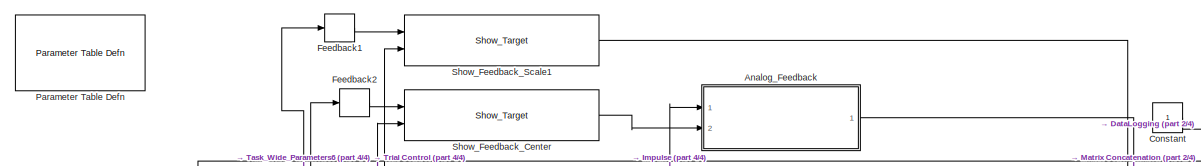
[diagram: root canvas - part 1/4, top center region]
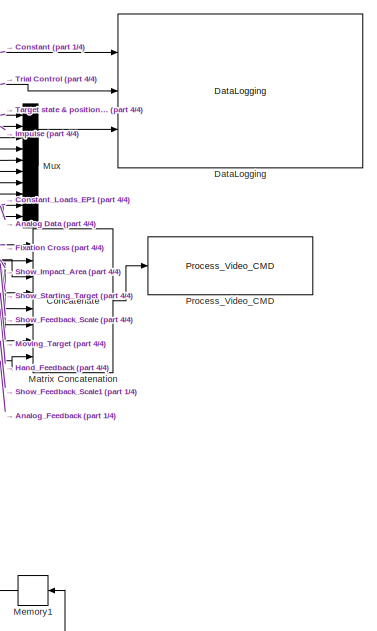
[diagram: root canvas - part 2/4, middle right region]
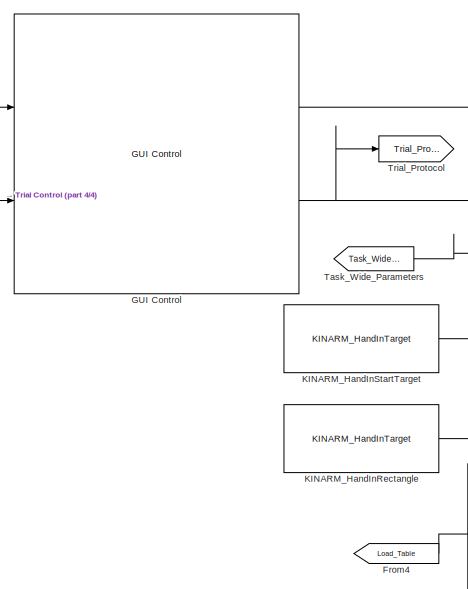
[diagram: root canvas - part 3/4, middle left region]
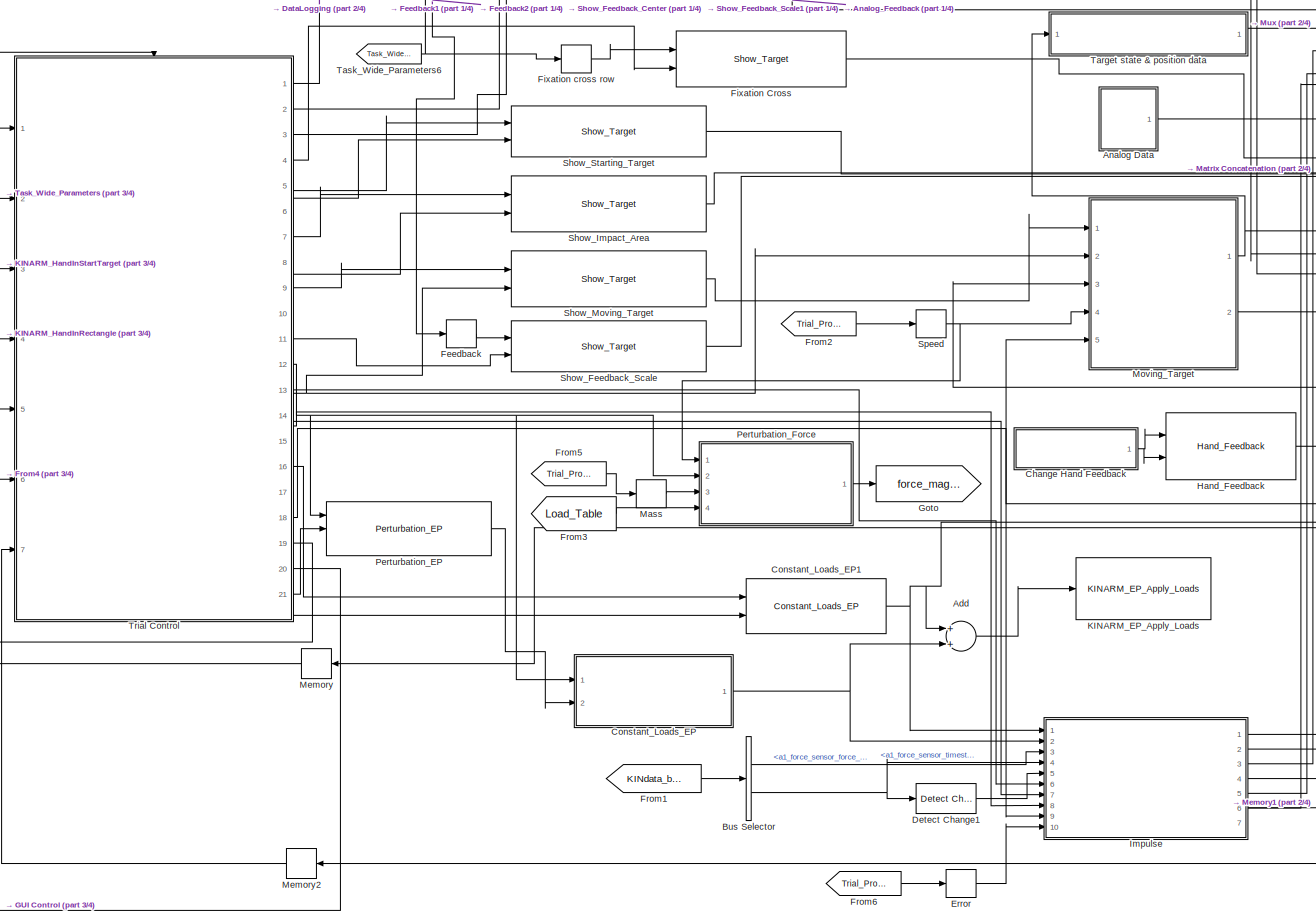
[diagram: root canvas - part 4/4, center side, full height]
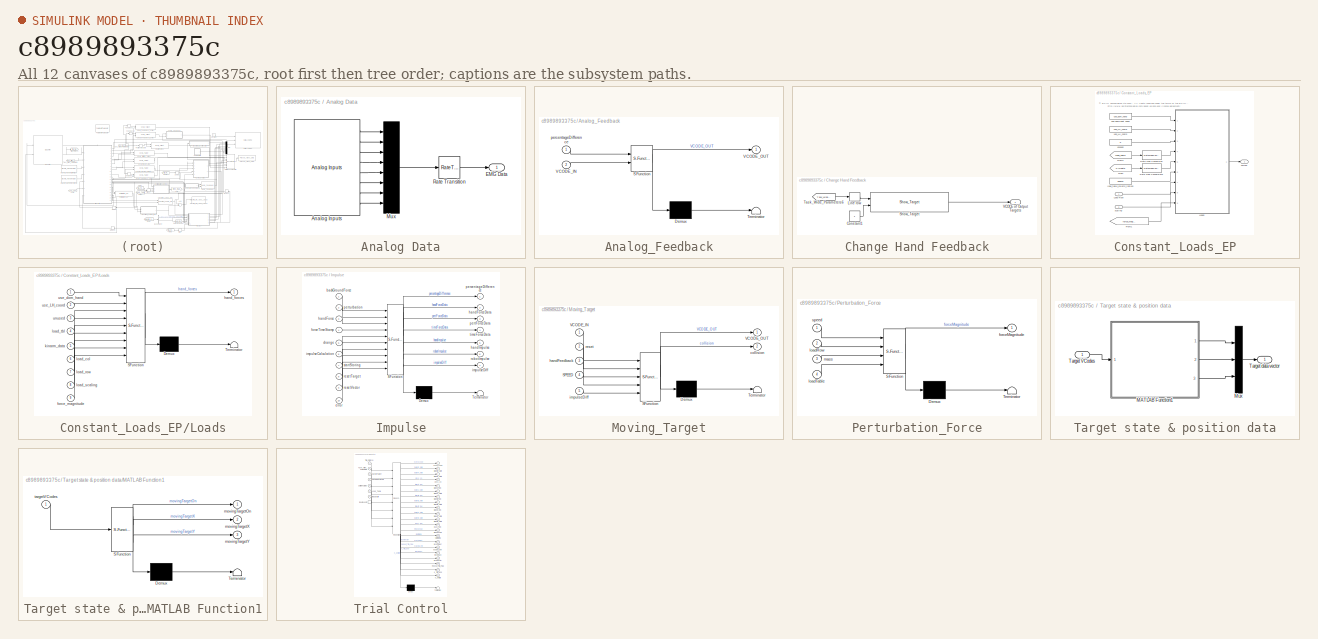
[diagram: thumbnail index - all 12 canvases of the model, root first then tree order]
MODEL slx_c8989893375c
KIND model
CONFIG AbsTol = auto
CONFIG FixedStep = BKIN_STEP_TIME
CONFIG MaxStep = auto
CONFIG MinStep = auto
CONFIG RelTol = 1e-3
CONFIG SampleTimeConstraint = Unconstrained
CONFIG Solver = ode4
CONFIG SolverMode = MultiTasking
CONFIG SolverName = ode4
CONFIG StartFcn =  warndlg('Dexterit-E models cannot run under simulation. Please compile your model and run it from within Dexterit-E.');set_param(bdroot,'SimulationCommand','stop')
CONFIG StartTime = 0.0
CONFIG StopTime = inf
WORKSPACE source: MAT-file member
WORKSPACE col_x = 1
BLOCK [Sum] Add
  InputSameDT = off
  OutDataTypeStr = Inherit: Inherit via internal rule
  Ports = [2, 1]
  SaturateOnIntegerOverflow = off
BLOCK [SubSystem] Analog Data
  Ports = [0, 1]
  RequestExecContextInheritance = off
BLOCK [Reference] Analog Data/Analog Inputs  REF=KINARM_IO/Analog Inputs
  Ports = [0, 8]
  SourceBlock = KINARM_IO/Analog Inputs
  SourceType = Analog Inputs
  channel = [1:8]
  coupling = [0]
  oscantime6071e = 0
  range = [5]
  sampletime = 0.001
  scantime6071e = 1.28e-5
  scantime6229 = 5e-6
  slot = -1
BLOCK [Outport] Analog Data/EMG Data
  IconDisplay = Port number
BLOCK [Mux] Analog Data/Mux
  DisplayOption = bar
  Inputs = 8
  Ports = [8, 1]
BLOCK [RateTransition] Analog Data/Rate Transition
BLOCK [SubSystem] Analog_Feedback
  ErrorFcn = Stateflow.Translate.translate
  PermitHierarchicalResolution = ExplicitOnly
  Ports = [2, 1]
  RequestExecContextInheritance = off
  SFBlockType = MATLAB Function
  TreatAsAtomicUnit = on
BLOCK [Demux] Analog_Feedback/ Demux 
  Outputs = 1
  Ports = [1, 1]
BLOCK [S-Function] Analog_Feedback/ SFunction 
  EnableBusSupport = on
  FunctionName = sf_sfun
  PortCounts = [2 2]
  Ports = [2, 2]
  Tag = Stateflow S-Function EIFANG_V1_09_09_21_RAMP_ERROR_FIXED 3
BLOCK [Terminator] Analog_Feedback/ Terminator 
BLOCK [Inport] Analog_Feedback/VCODE_IN
  IconDisplay = Port number
  Port = 2
BLOCK [Outport] Analog_Feedback/VCODE_OUT
  IconDisplay = Port number
BLOCK [Inport] Analog_Feedback/percentageDifference
  IconDisplay = Port number
BLOCK [BusSelector] Bus Selector
  OutputSignals = Robot1.a1_force_sensor_force_xyz,Robot1.a1_force_sensor_timestamp
  Ports = [1, 2]
BLOCK [SubSystem] Change Hand Feedback
  Ports = [0, 1]
  RequestExecContextInheritance = off
BLOCK [Constant] Change Hand Feedback/Constant1
BLOCK [Selector] Change Hand Feedback/Line row
  Indices = HAND_FB
  Ports = [1, 1]
BLOCK [Reference] Change Hand Feedback/Show_Target  REF=Video/Show_Target
  Ports = [2, 1]
  SourceBlock = Video/Show_Target
  SourceType = Show_Target
  attribcol1 = [COLOR_INIT COLOR_INIT RADIUS_VIS LENGTH_VIS HEIGHT_VIS 0]
  attribcol2 = [0 0 0 0 0 0]
  attribcol3 = [0 0 0 0 0 0]
  attribcol4 = [0 0 0 0 0 0]
  attribcol5 = [0 0 0 0 0 0]
  num_col = 6
  num_states = 1
  opacity = 100
  source = dialog
  stateindices_padding = [0 0 0 0 0;0 0 0 0 0;0 0 0 0 0;0 0 0 0 0;0 0 0 0 0]
  target_display = Both subject and operator displays
  target_type = Rectangle
BLOCK [From] Change Hand Feedback/Task_Wide_Parameters6
  GotoTag = Task_Wide_Parameters
  TagVisibility = global
BLOCK [Outport] Change Hand Feedback/VCOCE of Output Targets
  IconDisplay = Port number
BLOCK [Constant] Constant
BLOCK [SubSystem] Constant_Loads_EP
  AncestorBlock = KINARM_EP_loads/Constant_Loads_EP
  Ports = [2, 1]
  RequestExecContextInheritance = off
BLOCK [DataTypeConversion] Constant_Loads_EP/Data Type Conversion
  RndMeth = Floor
  SaturateOnIntegerOverflow = off
BLOCK [DataTypeConversion] Constant_Loads_EP/Data Type Conversion1
  RndMeth = Floor
  SaturateOnIntegerOverflow = off
BLOCK [Outport] Constant_Loads_EP/Forces
  IconDisplay = Port number
BLOCK [From] Constant_Loads_EP/From
  CloseFcn = tagdialog Close
  GotoTag = KINdata
  TagVisibility = global
BLOCK [From] Constant_Loads_EP/From1
  GotoTag = force_magnitude
  TagVisibility = global
BLOCK [From] Constant_Loads_EP/From2
  CloseFcn = tagdialog Close
  GotoTag = Load_Table
  TagVisibility = global
BLOCK [Inport] Constant_Loads_EP/Load Row
  IconDisplay = Port number
BLOCK [SubSystem] Constant_Loads_EP/Loads
  ErrorFcn = Stateflow.Translate.translate
  PermitHierarchicalResolution = ExplicitOnly
  Ports = [9, 1]
  RequestExecContextInheritance = off
  SFBlockType = MATLAB Function
  TreatAsAtomicUnit = on
BLOCK [Demux] Constant_Loads_EP/Loads/ Demux 
  Outputs = 1
  Ports = [1, 1]
BLOCK [S-Function] Constant_Loads_EP/Loads/ SFunction 
  EnableBusSupport = on
  FunctionName = sf_sfun
  PortCounts = [9 2]
  Ports = [9, 2]
  Tag = Stateflow S-Function EIFANG_V1_09_09_21_RAMP_ERROR_FIXED 11
BLOCK [Terminator] Constant_Loads_EP/Loads/ Terminator 
BLOCK [Inport] Constant_Loads_EP/Loads/force_magnitude
  IconDisplay = Port number
  Port = 9
BLOCK [Outport] Constant_Loads_EP/Loads/hand_forces
  IconDisplay = Port number
BLOCK [Inport] Constant_Loads_EP/Loads/kinarm_data
  IconDisplay = Port number
  Port = 5
BLOCK [Inport] Constant_Loads_EP/Loads/load_col
  IconDisplay = Port number
  Port = 6
BLOCK [Inport] Constant_Loads_EP/Loads/load_row
  IconDisplay = Port number
  Port = 7
BLOCK [Inport] Constant_Loads_EP/Loads/load_scaling
  IconDisplay = Port number
  Port = 8
BLOCK [Inport] Constant_Loads_EP/Loads/load_tbl
  IconDisplay = Port number
  Port = 4
BLOCK [Inport] Constant_Loads_EP/Loads/unused
  IconDisplay = Port number
  Port = 3
BLOCK [Inport] Constant_Loads_EP/Loads/use_LH_coord
  IconDisplay = Port number
  Port = 2
BLOCK [Inport] Constant_Loads_EP/Loads/use_dom_hand
  IconDisplay = Port number
BLOCK [Constant] Constant_Loads_EP/load_table_column_indices
  Value = loadcol
BLOCK [Inport] Constant_Loads_EP/scaling
  IconDisplay = Port number
  Port = 2
BLOCK [Constant] Constant_Loads_EP/unused
  Value = 0
BLOCK [Constant] Constant_Loads_EP/use dominant hand
  Value = use_dom_hand
BLOCK [Constant] Constant_Loads_EP/use_LH_coord
  Value = use_LH_coord
BLOCK [Reference] Constant_Loads_EP1  REF=KINARM_EP_loads/Constant_Loads_EP
  Ports = [2, 1]
  SourceBlock = KINARM_EP_loads/Constant_Loads_EP
  SourceType = Constant_Loads_EP
  loadcol = [X_LOAD Y_LOAD]
  scaling = 1
  source = port
  use_LH_coord = on
  use_dom_hand = on
BLOCK [Reference] DataLogging  REF=General/DataLogging
  Ports = [3]
  SourceBlock = General/DataLogging
  SourceType = DataLogging
  ecat_include = on
  log_analog_inputs = on
  log_event_codes = on
  show_time_remaining = off
BLOCK [Reference] Detect Change1  REF=simulink/Logic and Bit
Operations/Detect
Change
  InputProcessing = Inherited
  OutDataTypeStr = boolean
  Ports = [1, 1]
  SourceBlock = simulink/Logic and Bit\nOperations/Detect\nChange
  SourceType = Detect Change
  vinit = 0
BLOCK [Selector] Error
  Indices = ERROR_COL
  Ports = [1, 1]
BLOCK [Selector] Feedback
  Indices = SQUARE_OUT_FEEDBACK_ROW
  Ports = [1, 1]
BLOCK [Selector] Feedback1
  Indices = SQUARE_IN_FEEDBACK_ROW
  Ports = [1, 1]
BLOCK [Selector] Feedback2
  Indices = CIRCLE_FEEDBACK_ROW
  Ports = [1, 1]
BLOCK [Reference] Fixation Cross  REF=Video/Show_Target
  Ports = [2, 1]
  SourceBlock = Video/Show_Target
  SourceType = Show_Target
  attribcol1 = [COLOR_INIT 0 0 RADIUS_VIS]
  attribcol2 = [0 0 0 0]
  attribcol3 = [0 0 0 0]
  attribcol4 = [0 0 0 0]
  attribcol5 = [0 0 0 0]
  num_col = 4
  num_states = 1
  opacity = 100
  source = dialog
  stateindices_padding = [0 0 0 0 0 0 0;0 0 0 0 0 0 0;0 0 0 0 0 0 0;0 0 0 0 0 0 0;0 0 0 0 0 0 0]
  target_display = Both subject and operator displays
  target_type = Circle
BLOCK [Selector] Fixation cross row
  Indices = FIXATION_CROSS_ROW
  Ports = [1, 1]
BLOCK [From] From1
  GotoTag = KINdata_bus
  TagVisibility = global
BLOCK [From] From2
  GotoTag = Trial_Protocol
  TagVisibility = global
BLOCK [From] From3
  GotoTag = Load_Table
  IconDisplay = Signal name
  TagVisibility = global
BLOCK [From] From4
  GotoTag = Load_Table
  TagVisibility = global
BLOCK [From] From5
  GotoTag = Trial_Protocol
  TagVisibility = global
BLOCK [From] From6
  GotoTag = Trial_Protocol
  TagVisibility = global
BLOCK [Reference] GUI Control  REF=General/GUI Control
  Lcols = 4
  Ports = [2, 2]
  SourceBlock = General/GUI Control
  SourceType = GUI Control
  Target_Type = 1
  Vcols = 3
  XYcols = [1 2]
  indices_padding = [0 0 0 0;0 0 0 0]
  load_table_rows = 20
  show_repeat_trial_flag = on
  target_table_rows = 64
  target_type_str = Circle
  task_version = 1.0
  tp_table_rows = 100
  use_custom_tp = off
BLOCK [Goto] Goto
  GotoTag = force_magnitude
  TagVisibility = global
BLOCK [Reference] Hand_Feedback  REF=KINARM_general/Hand_Feedback
  Ports = [2, 1]
  SourceBlock = KINARM_general/Hand_Feedback
  SourceType = Hand_Feedback
  feedback_cntl_src = style and status
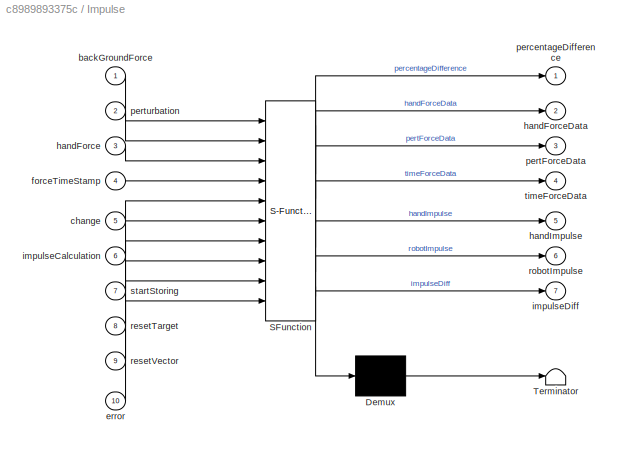
BLOCK [SubSystem] Impulse
  ErrorFcn = Stateflow.Translate.translate
  PermitHierarchicalResolution = ExplicitOnly
  Ports = [10, 7]
  RequestExecContextInheritance = off
  SFBlockType = MATLAB Function
  TreatAsAtomicUnit = on
BLOCK [Demux] Impulse/ Demux 
  Outputs = 1
  Ports = [1, 1]
BLOCK [S-Function] Impulse/ SFunction 
  EnableBusSupport = on
  FunctionName = sf_sfun
  PortCounts = [10 8]
  Ports = [10, 8]
  Tag = Stateflow S-Function EIFANG_V1_09_09_21_RAMP_ERROR_FIXED 4
BLOCK [Terminator] Impulse/ Terminator 
BLOCK [Inport] Impulse/backGroundForce
  IconDisplay = Port number
BLOCK [Inport] Impulse/change
  IconDisplay = Port number
  Port = 5
BLOCK [Inport] Impulse/error
  IconDisplay = Port number
  Port = 10
BLOCK [Inport] Impulse/forceTimeStamp
  IconDisplay = Port number
  Port = 4
BLOCK [Inport] Impulse/handForce
  IconDisplay = Port number
  Port = 3
BLOCK [Outport] Impulse/handForceData
  IconDisplay = Port number
  Port = 2
BLOCK [Outport] Impulse/handImpulse
  IconDisplay = Port number
  Port = 5
BLOCK [Inport] Impulse/impulseCalculation
  IconDisplay = Port number
  Port = 6
BLOCK [Outport] Impulse/impulseDiff
  IconDisplay = Port number
  Port = 7
BLOCK [Outport] Impulse/percentageDifference
  IconDisplay = Port number
BLOCK [Outport] Impulse/pertForceData
  IconDisplay = Port number
  Port = 3
BLOCK [Inport] Impulse/perturbation
  IconDisplay = Port number
  Port = 2
BLOCK [Inport] Impulse/resetTarget
  IconDisplay = Port number
  Port = 8
BLOCK [Inport] Impulse/resetVector
  IconDisplay = Port number
  Port = 9
BLOCK [Outport] Impulse/robotImpulse
  IconDisplay = Port number
  Port = 6
BLOCK [Inport] Impulse/startStoring
  IconDisplay = Port number
  Port = 7
BLOCK [Outport] Impulse/timeForceData
  IconDisplay = Port number
  Port = 4
BLOCK [Reference] KINARM_EP_Apply_Loads  REF=KINARM_EP_loads/KINARM_EP_Apply_Loads
  Ports = [1]
  SourceBlock = KINARM_EP_loads/KINARM_EP_Apply_Loads
  SourceType = KINARM_EP_Apply_Loads
  down_duration = 500
  max_force = 15
  up_duration = 500
BLOCK [Reference] KINARM_HandInRectangle  REF=KINARM_general/KINARM_HandInTarget
  Ports = [0, 1]
  SourceBlock = KINARM_general/KINARM_HandInTarget
  SourceType = KINARM_HandInTarget
  attribcol1 = [LENGTH_VIS HEIGHT_VIS 0]
  attribcol2 = [0 0 0]
  attribcol3 = [0 0 0]
  attribcol4 = [0 0 0]
  attribcol5 = [0 0 0]
  num_states = 1
  target_type = Rectangle
  use_dominant_hand = on
BLOCK [Reference] KINARM_HandInStartTarget  REF=KINARM_general/KINARM_HandInTarget
  Ports = [0, 1]
  SourceBlock = KINARM_general/KINARM_HandInTarget
  SourceType = KINARM_HandInTarget
  attribcol1 = [LENGTH_VIS HEIGHT_VIS 0]
  attribcol2 = [0 0 0]
  attribcol3 = [0 0 0]
  attribcol4 = [0 0 0]
  attribcol5 = [0 0 0]
  num_states = 1
  target_type = Rectangle
  use_dominant_hand = on
BLOCK [Selector] Mass
  Indices = MASS_COL
  Ports = [1, 1]
BLOCK [Concatenate] Matrix Concatenation
  Mode = Multidimensional array
  NumInputs = 8
  Ports = [8, 1]
BLOCK [Memory] Memory
BLOCK [Memory] Memory1
BLOCK [Memory] Memory2
BLOCK [SubSystem] Moving_Target
  ErrorFcn = Stateflow.Translate.translate
  PermitHierarchicalResolution = ExplicitOnly
  Ports = [5, 2]
  RequestExecContextInheritance = off
  SFBlockType = MATLAB Function
  TreatAsAtomicUnit = on
BLOCK [Demux] Moving_Target/ Demux 
  Outputs = 1
  Ports = [1, 1]
BLOCK [S-Function] Moving_Target/ SFunction 
  EnableBusSupport = on
  FunctionName = sf_sfun
  PortCounts = [5 3]
  Ports = [5, 3]
  Tag = Stateflow S-Function EIFANG_V1_09_09_21_RAMP_ERROR_FIXED 1
BLOCK [Terminator] Moving_Target/ Terminator 
BLOCK [Inport] Moving_Target/SPEED
  IconDisplay = Port number
  Port = 4
BLOCK [Inport] Moving_Target/VCODE_IN
  IconDisplay = Port number
BLOCK [Outport] Moving_Target/VCODE_OUT
  IconDisplay = Port number
BLOCK [Outport] Moving_Target/collision
  IconDisplay = Port number
  Port = 2
BLOCK [Inport] Moving_Target/handFeedback
  IconDisplay = Port number
  Port = 3
BLOCK [Inport] Moving_Target/impulseDiff
  IconDisplay = Port number
  Port = 5
BLOCK [Inport] Moving_Target/reset
  IconDisplay = Port number
  Port = 2
BLOCK [Mux] Mux
  DisplayOption = bar
  Inputs = 10
  Ports = [10, 1]
BLOCK [Reference] Parameter Table Defn  REF=General/Parameter Table Defn
  Ports = []
  ShowInLibBrowser = 0
  SourceBlock = General/Parameter Table Defn
  UserDataPersistent = on
BLOCK [Reference] Perturbation_EP  REF=KINARM_EP_loads/Perturbation_EP
  Ports = [3, 1]
  SourceBlock = KINARM_EP_loads/Perturbation_EP
  SourceType = Perturbation_EP
  loadcol = [RAMP DURATION RAMP]
BLOCK [SubSystem] Perturbation_Force
  ErrorFcn = Stateflow.Translate.translate
  PermitHierarchicalResolution = ExplicitOnly
  Ports = [4, 1]
  RequestExecContextInheritance = off
  SFBlockType = MATLAB Function
  TreatAsAtomicUnit = on
BLOCK [Demux] Perturbation_Force/ Demux 
  Outputs = 1
  Ports = [1, 1]
BLOCK [S-Function] Perturbation_Force/ SFunction 
  EnableBusSupport = on
  FunctionName = sf_sfun
  PortCounts = [4 2]
  Ports = [4, 2]
  Tag = Stateflow S-Function EIFANG_V1_09_09_21_RAMP_ERROR_FIXED 6
BLOCK [Terminator] Perturbation_Force/ Terminator 
BLOCK [Outport] Perturbation_Force/forceMagnitude
  IconDisplay = Port number
BLOCK [Inport] Perturbation_Force/loadRow
  IconDisplay = Port number
  Port = 2
BLOCK [Inport] Perturbation_Force/loadTable
  IconDisplay = Port number
  Port = 4
BLOCK [Inport] Perturbation_Force/mass
  IconDisplay = Port number
  Port = 3
BLOCK [Inport] Perturbation_Force/speed
  IconDisplay = Port number
BLOCK [Reference] Process_Video_CMD  REF=Video/Process_Video_CMD
  Ports = [1]
  SourceBlock = Video/Process_Video_CMD
  SourceType = Process_Video_CMD
  video_delay = 50
BLOCK [Reference] Show_Feedback_Center  REF=Video/Show_Target
  Ports = [2, 1]
  SourceBlock = Video/Show_Target
  SourceType = Show_Target
  attribcol1 = [COLOR_INIT OUTLINE_INIT OUT_WIDTH LENGTH_VIS HEIGHT_VIS 0]
  attribcol2 = [0 0 0 0 0 0]
  attribcol3 = [0 0 0 0 0 0]
  attribcol4 = [0 0 0 0 0 0]
  attribcol5 = [0 0 0 0 0 0]
  num_col = 6
  num_states = 1
  opacity = 100
  source = dialog
  stateindices_padding = [0 0 0 0 0;0 0 0 0 0;0 0 0 0 0;0 0 0 0 0;0 0 0 0 0]
  target_display = Both subject and operator displays
  target_type = Rectangle
BLOCK [Reference] Show_Feedback_Scale  REF=Video/Show_Target
  Ports = [2, 1]
  SourceBlock = Video/Show_Target
  SourceType = Show_Target
  attribcol1 = [COLOR_INIT OUTLINE_INIT OUT_WIDTH LENGTH_VIS HEIGHT_VIS 0]
  attribcol2 = [0 0 0 0 0 0]
  attribcol3 = [0 0 0 0 0 0]
  attribcol4 = [0 0 0 0 0 0]
  attribcol5 = [0 0 0 0 0 0]
  num_col = 6
  num_states = 1
  opacity = 100
  source = dialog
  stateindices_padding = [0 0 0 0 0;0 0 0 0 0;0 0 0 0 0;0 0 0 0 0;0 0 0 0 0]
  target_display = Both subject and operator displays
  target_type = Rectangle
BLOCK [Reference] Show_Feedback_Scale1  REF=Video/Show_Target
  Ports = [2, 1]
  SourceBlock = Video/Show_Target
  SourceType = Show_Target
  attribcol1 = [COLOR_INIT OUTLINE_INIT OUT_WIDTH LENGTH_VIS HEIGHT_VIS 0]
  attribcol2 = [0 0 0 0 0 0]
  attribcol3 = [0 0 0 0 0 0]
  attribcol4 = [0 0 0 0 0 0]
  attribcol5 = [0 0 0 0 0 0]
  num_col = 6
  num_states = 1
  opacity = 100
  source = dialog
  stateindices_padding = [0 0 0 0 0;0 0 0 0 0;0 0 0 0 0;0 0 0 0 0;0 0 0 0 0]
  target_display = Both subject and operator displays
  target_type = Rectangle
BLOCK [Reference] Show_Impact_Area  REF=Video/Show_Target
  Ports = [2, 1]
  SourceBlock = Video/Show_Target
  SourceType = Show_Target
  attribcol1 = [0 OUTLINE_INIT OUT_WIDTH LENGTH_VIS HEIGHT_VIS 0]
  attribcol2 = [0 OUTLINE_CORRECT OUT_WIDTH LENGTH_VIS HEIGHT_VIS 0]
  attribcol3 = [0 OUTLINE_INCORRECT OUT_WIDTH LENGTH_VIS HEIGHT_VIS 0]
  attribcol4 = [0 0 0 0 0 0]
  attribcol5 = [0 0 0 0 0 0]
  num_col = 6
  num_states = 3
  opacity = 100
  source = dialog
  stateindices_padding = [0 0 0 0 0;0 0 0 0 0;0 0 0 0 0;0 0 0 0 0;0 0 0 0 0]
  target_display = Both subject and operator displays
  target_type = Rectangle
BLOCK [Reference] Show_Moving_Target  REF=Video/Show_Target
  Ports = [2, 1]
  SourceBlock = Video/Show_Target
  SourceType = Show_Target
  attribcol1 = [COLOR_INIT 0 0 RADIUS_VIS]
  attribcol2 = [0 0 0 0]
  attribcol3 = [0 0 0 0]
  attribcol4 = [0 0 0 0]
  attribcol5 = [0 0 0 0]
  num_col = 4
  num_states = 1
  opacity = 100
  source = dialog
  stateindices_padding = [0 0 0 0 0 0 0;0 0 0 0 0 0 0;0 0 0 0 0 0 0;0 0 0 0 0 0 0;0 0 0 0 0 0 0]
  target_display = Both subject and operator displays
  target_type = Circle
BLOCK [Reference] Show_Starting_Target  REF=Video/Show_Target
  Ports = [2, 1]
  SourceBlock = Video/Show_Target
  SourceType = Show_Target
  attribcol1 = [COLOR_INIT OUTLINE_INIT OUT_WIDTH LENGTH_VIS HEIGHT_VIS 0]
  attribcol2 = [0 0 0 0 0 0]
  attribcol3 = [0 0 0 0 0 0]
  attribcol4 = [0 0 0 0 0 0]
  attribcol5 = [0 0 0 0 0 0]
  num_col = 6
  num_states = 1
  opacity = 100
  source = dialog
  stateindices_padding = [0 0 0 0 0;0 0 0 0 0;0 0 0 0 0;0 0 0 0 0;0 0 0 0 0]
  target_display = Both subject and operator displays
  target_type = Rectangle
BLOCK [Selector] Speed
  Indices = SPEED_COL
  Ports = [1, 1]
BLOCK [SubSystem] Target state & position data
  Ports = [1, 1]
  RequestExecContextInheritance = off
BLOCK [SubSystem] Target state & position data/MATLAB Function1
  ErrorFcn = Stateflow.Translate.translate
  PermitHierarchicalResolution = ExplicitOnly
  Ports = [1, 3]
  RequestExecContextInheritance = off
  SFBlockType = MATLAB Function
  TreatAsAtomicUnit = on
BLOCK [Demux] Target state & position data/MATLAB Function1/ Demux 
  Outputs = 1
  Ports = [1, 1]
BLOCK [S-Function] Target state & position data/MATLAB Function1/ SFunction 
  EnableBusSupport = on
  FunctionName = sf_sfun
  PortCounts = [1 4]
  Ports = [1, 4]
  Tag = Stateflow S-Function EIFANG_V1_09_09_21_RAMP_ERROR_FIXED 5
BLOCK [Terminator] Target state & position data/MATLAB Function1/ Terminator 
BLOCK [Outport] Target state & position data/MATLAB Function1/movingTargetOn
  IconDisplay = Port number
BLOCK [Outport] Target state & position data/MATLAB Function1/movingTargetX
  IconDisplay = Port number
  Port = 2
BLOCK [Outport] Target state & position data/MATLAB Function1/movingTargetY
  IconDisplay = Port number
  Port = 3
BLOCK [Inport] Target state & position data/MATLAB Function1/targetVCodes
  IconDisplay = Port number
BLOCK [Mux] Target state & position data/Mux
  DisplayOption = bar
  Inputs = 3
  Ports = [3, 1]
BLOCK [Inport] Target state & position data/Target VCodes
  IconDisplay = Port number
BLOCK [Outport] Target state & position data/Target data vector
  IconDisplay = Port number
BLOCK [From] Task_Wide_Parameters
  GotoTag = Task_Wide_Parameters
  TagVisibility = global
BLOCK [From] Task_Wide_Parameters6
  GotoTag = Task_Wide_Parameters
  TagVisibility = global
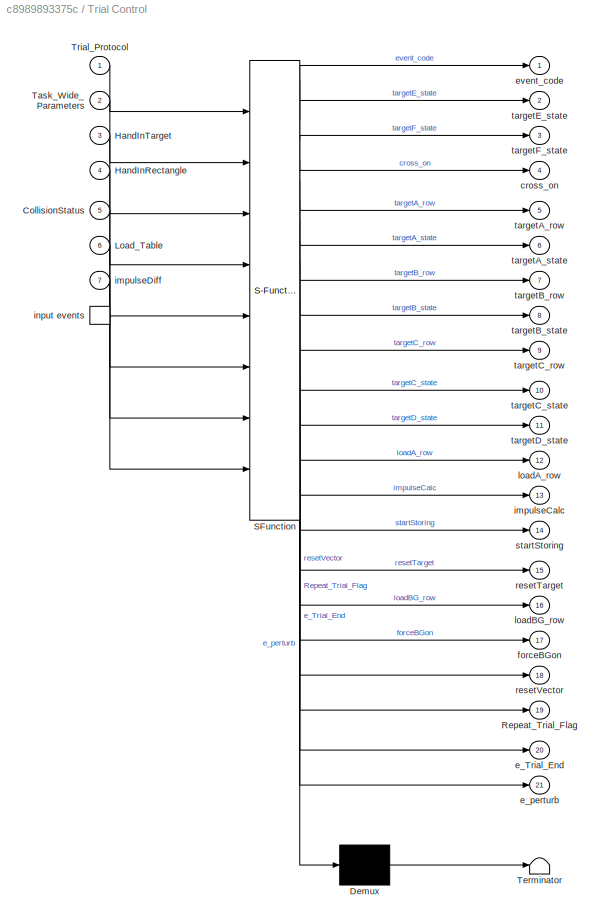
BLOCK [SubSystem] Trial Control
  ErrorFcn = Stateflow.Translate.translate
  PermitHierarchicalResolution = ExplicitOnly
  Ports = [7, 21, 0, 1]
  RequestExecContextInheritance = off
  SFBlockType = Chart
  TreatAsAtomicUnit = on
BLOCK [Demux] Trial Control/ Demux 
  Outputs = 1
  Ports = [1, 1]
BLOCK [S-Function] Trial Control/ SFunction 
  EnableBusSupport = on
  FunctionName = sf_sfun
  PortCounts = [8 22]
  Ports = [8, 22]
  Tag = Stateflow S-Function EIFANG_V1_09_09_21_RAMP_ERROR_FIXED 2
BLOCK [Terminator] Trial Control/ Terminator 
BLOCK [TriggerPort] Trial Control/ input events 
  Ports = [0, 1]
  ShowOutputPort = on
  TriggerType = either
BLOCK [Inport] Trial Control/CollisionStatus
  IconDisplay = Port number
  Port = 5
BLOCK [Inport] Trial Control/HandInRectangle
  IconDisplay = Port number
  Port = 4
BLOCK [Inport] Trial Control/HandInTarget
  IconDisplay = Port number
  Port = 3
BLOCK [Inport] Trial Control/Load_Table
  IconDisplay = Port number
  Port = 6
BLOCK [Outport] Trial Control/Repeat_Trial_Flag
  IconDisplay = Port number
  Port = 19
BLOCK [Inport] Trial Control/Task_Wide_Parameters
  IconDisplay = Port number
  Port = 2
BLOCK [Inport] Trial Control/Trial_Protocol
  IconDisplay = Port number
BLOCK [Outport] Trial Control/cross_on
  IconDisplay = Port number
  Port = 4
BLOCK [Outport] Trial Control/e_Trial_End
  IconDisplay = Port number
  Port = 20
BLOCK [Outport] Trial Control/e_perturb
  IconDisplay = Port number
  Port = 21
BLOCK [Outport] Trial Control/event_code
  IconDisplay = Port number
BLOCK [Outport] Trial Control/forceBGon
  IconDisplay = Port number
  Port = 17
BLOCK [Outport] Trial Control/impulseCalc
  IconDisplay = Port number
  Port = 13
BLOCK [Inport] Trial Control/impulseDiff
  IconDisplay = Port number
  Port = 7
BLOCK [Outport] Trial Control/loadA_row
  IconDisplay = Port number
  Port = 12
BLOCK [Outport] Trial Control/loadBG_row
  IconDisplay = Port number
  Port = 16
BLOCK [Outport] Trial Control/resetTarget
  IconDisplay = Port number
  Port = 15
BLOCK [Outport] Trial Control/resetVector
  IconDisplay = Port number
  Port = 18
BLOCK [Outport] Trial Control/startStoring
  IconDisplay = Port number
  Port = 14
BLOCK [Outport] Trial Control/targetA_row
  IconDisplay = Port number
  Port = 5
BLOCK [Outport] Trial Control/targetA_state
  IconDisplay = Port number
  Port = 6
BLOCK [Outport] Trial Control/targetB_row
  IconDisplay = Port number
  Port = 7
BLOCK [Outport] Trial Control/targetB_state
  IconDisplay = Port number
  Port = 8
BLOCK [Outport] Trial Control/targetC_row
  IconDisplay = Port number
  Port = 9
BLOCK [Outport] Trial Control/targetC_state
  IconDisplay = Port number
  Port = 10
BLOCK [Outport] Trial Control/targetD_state
  IconDisplay = Port number
  Port = 11
BLOCK [Outport] Trial Control/targetE_state
  IconDisplay = Port number
  Port = 2
BLOCK [Outport] Trial Control/targetF_state
  IconDisplay = Port number
  Port = 3
BLOCK [Goto] Trial_Protocol
  GotoTag = Trial_Protocol
  TagVisibility = global
ANNOTATION Constant_Loads_EP: <copyright redacted>
LINE Add:1 -> KINARM_EP_Apply_Loads:1
LINE Analog Data/Analog Inputs:1 -> Analog Data/Mux:1
LINE Analog Data/Analog Inputs:2 -> Analog Data/Mux:2
LINE Analog Data/Analog Inputs:3 -> Analog Data/Mux:3
LINE Analog Data/Analog Inputs:4 -> Analog Data/Mux:4
LINE Analog Data/Analog Inputs:5 -> Analog Data/Mux:5
LINE Analog Data/Analog Inputs:6 -> Analog Data/Mux:6
LINE Analog Data/Analog Inputs:7 -> Analog Data/Mux:7
LINE Analog Data/Analog Inputs:8 -> Analog Data/Mux:8
LINE Analog Data/Mux:1 -> Analog Data/Rate Transition:1
LINE Analog Data/Rate Transition:1 -> Analog Data/EMG Data:1
LINE Analog Data:1 -> Mux:10
LINE Analog_Feedback:1 -> Matrix Concatenation:8
LINE Bus Selector:1 -> Impulse:3
NET Bus Selector:2 -> Detect Change1:1, Impulse:4
LINE Change Hand Feedback/Constant1:1 -> Change Hand Feedback/Show_Target:2
LINE Change Hand Feedback/Line row:1 -> Change Hand Feedback/Show_Target:1
LINE Change Hand Feedback/Show_Target:1 -> Change Hand Feedback/VCOCE of Output Targets:1
LINE Change Hand Feedback/Task_Wide_Parameters6:1 -> Change Hand Feedback/Line row:1
NET Change Hand Feedback:1 -> Hand_Feedback:1, Hand_Feedback:2
LINE Constant:1 -> DataLogging:1
NET Constant_Loads_EP1:1 -> Add:1, Impulse:1, Mux:9
NET Constant_Loads_EP:1 -> Add:2, Impulse:2
LINE Detect Change1:1 -> Impulse:5
LINE Error:1 -> Impulse:10
LINE Feedback1:1 -> Show_Feedback_Scale1:1
LINE Feedback2:1 -> Show_Feedback_Center:1
LINE Feedback:1 -> Show_Feedback_Scale:1
LINE Fixation Cross:1 -> Matrix Concatenation:1
LINE Fixation cross row:1 -> Fixation Cross:1
LINE From1:1 -> Bus Selector:1
LINE From2:1 -> Speed:1
LINE From3:1 -> Perturbation_Force:4
LINE From4:1 -> Trial Control:6
LINE From5:1 -> Mass:1
LINE From6:1 -> Error:1
LINE GUI Control:1 -> Trial Control:trigger
NET GUI Control:2 -> Trial Control:1, Trial_Protocol:1
NET Hand_Feedback:1 -> Matrix Concatenation:5, Moving_Target:3
NET Impulse:1 -> Analog_Feedback:1, Mux:8
LINE Impulse:2 -> Mux:2
LINE Impulse:3 -> Mux:3
LINE Impulse:4 -> Mux:4
LINE Impulse:5 -> Mux:5
LINE Impulse:6 -> Mux:6
NET Impulse:7 -> Memory1:1, Memory2:1, Mux:7
LINE KINARM_HandInRectangle:1 -> Trial Control:4
LINE KINARM_HandInStartTarget:1 -> Trial Control:3
LINE Mass:1 -> Perturbation_Force:3
LINE Matrix Concatenation:1 -> Process_Video_CMD:1
LINE Memory1:1 -> Moving_Target:5
LINE Memory2:1 -> Trial Control:7
LINE Memory:1 -> Trial Control:5
NET Moving_Target:1 -> Matrix Concatenation:4, Target state & position data:1
LINE Moving_Target:2 -> Memory:1
LINE Mux:1 -> DataLogging:3
LINE Perturbation_EP:1 -> Constant_Loads_EP:2
LINE Perturbation_Force:1 -> Goto:1
LINE Show_Feedback_Center:1 -> Analog_Feedback:2
LINE Show_Feedback_Scale1:1 -> Matrix Concatenation:7
LINE Show_Feedback_Scale:1 -> Matrix Concatenation:6
LINE Show_Impact_Area:1 -> Matrix Concatenation:3
LINE Show_Moving_Target:1 -> Moving_Target:1
LINE Show_Starting_Target:1 -> Matrix Concatenation:2
NET Speed:1 -> Moving_Target:4, Perturbation_Force:1
LINE Target state & position data/MATLAB Function1:1 -> Target state & position data/Mux:1
LINE Target state & position data/MATLAB Function1:2 -> Target state & position data/Mux:2
LINE Target state & position data/MATLAB Function1:3 -> Target state & position data/Mux:3
LINE Target state & position data/Mux:1 -> Target state & position data/Target data vector:1
LINE Target state & position data/Target VCodes:1 -> Target state & position data/MATLAB Function1:1
LINE Target state & position data:1 -> Mux:1
NET Task_Wide_Parameters6:1 -> Feedback1:1, Feedback2:1, Feedback:1, Fixation cross row:1
LINE Task_Wide_Parameters:1 -> Trial Control:2
LINE Trial Control:1 -> DataLogging:2
NET Trial Control:10 -> Moving_Target:2, Show_Moving_Target:2
LINE Trial Control:11 -> Show_Feedback_Scale:2
NET Trial Control:12 -> Constant_Loads_EP:1, Perturbation_EP:1, Perturbation_Force:2
LINE Trial Control:13 -> Impulse:6
LINE Trial Control:14 -> Impulse:7
LINE Trial Control:15 -> Impulse:8
LINE Trial Control:16 -> Constant_Loads_EP1:1
LINE Trial Control:17 -> Constant_Loads_EP1:2
LINE Trial Control:18 -> Impulse:9
LINE Trial Control:19 -> GUI Control:1
LINE Trial Control:2 -> Show_Feedback_Center:2
LINE Trial Control:20 -> GUI Control:2
LINE Trial Control:21 -> Perturbation_EP:2
LINE Trial Control:3 -> Show_Feedback_Scale1:2
LINE Trial Control:4 -> Fixation Cross:2
LINE Trial Control:5 -> Show_Starting_Target:1
LINE Trial Control:6 -> Show_Starting_Target:2
LINE Trial Control:7 -> Show_Impact_Area:1
LINE Trial Control:8 -> Show_Impact_Area:2
LINE Trial Control:9 -> Show_Moving_Target:1
note: NET lines group one-source signal fan-out (src -> all destinations, sorted); 1:1 wires keep LINE
CHART Moving_Target states=1 transitions=1
  STATE_LABEL 'eML_blk_kernel()'
  STATE_LABEL 'SCRIPT:\nfunction [VCODE_OUT,collision]= fcn(VCODE_IN, reset, handFeedback, SPEED,impulseDiff)\n%This function changes the Y position of the target so it moves down in a\n%straight line\nspeed = SPEED/4000; % The sampling rate of the task program is 4000 and therefore we are doing the division\n\nVCODE_OUT = VCODE_IN;\ncollision = 0;\n\n%This part chooses a random speed for each trial between the max and m...<+1381ch>'
CHART Trial Control states=22 transitions=29
  STATE_LABEL 'MainTrial'
  STATE_LABEL 'ShowStartingTarget/\n// Turn on first target and wait for a specified time or until the hand is in the target.\ntargetA_row = Trial_Protocol[START_TARGET_COL];\ntargetA_state = 1;\ntargetB_state = 0;\ntargetC_state = 0;\ntargetD_state = 0;\ntargetE_state = 0;\ntargetF_state = 0;\nstartStoring = 0;\nimpulseCalc = 0;\nresetTarget = 0;\nforceBGon = 0;\nresetVector = 0;\ncross_on = 0;\nRepeat_Trial_Flag = 0;\nloadBG_...<+120ch>'
  STATE_LABEL 'StayAtStartingTarget/\n// Log an event that target was reached and then wait for a specified time.\nevent_code = E_TARGET_REACHED;\ntickCount = Trial_Protocol[DELAY_COL] ;'
  STATE_LABEL 'UnsuccessfulTrial4/\nevent_code = E_START_TARGET;\nRepeat_Trial_Flag = 1;'
  STATE_LABEL 'ShowImpactArea/\ntargetB_row = Trial_Protocol[IMPACT_AREA_COL];\ntargetB_state = 1;\nevent_code = E_IMPACT_AREA_ON;\n'
  STATE_LABEL 'HandInImpactArea/\nevent_code = E_AREA_REACHED;\ntargetA_state = 0;\nforceBGon = 1;'
  STATE_LABEL 'HandOutImpactArea/\nevent_code = E_AREA_LEFT_CROSS;\nRepeat_Trial_Flag = 1;'
  STATE_LABEL 'CrossOn/\ncross_on = 1;\nevent_code = E_CROSS_ON;'
  STATE_LABEL 'UnsuccessfulTrial3/\nevent_code = E_IMPACT_AREA;\nRepeat_Trial_Flag = 1;'
  STATE_LABEL 'CrossOff/\ncross_on = 0;\nevent_code=E_CROSS_OFF;'
  STATE_LABEL 'ShowMovingTarget/\n// Show moving traget\ntargetC_row = Trial_Protocol[MOVING_TARGET_COL];\ntargetC_state = 1;\nevent_code = E_MOVING_TARGET_ON;'
  STATE_LABEL 'HandOutImpactArea1/\nevent_code = E_AREA_LEFT_TARGET;\nRepeat_Trial_Flag = 1;'
  STATE_LABEL 'ResetImpactVector/\nresetVector = 1;'
  STATE_LABEL 'Collision/\nresetVector = 0;\nstartStoring=1;\nevent_code = E_COLLISION;\ntickCount = Load_Table[loadA_row][RAMP]*2 + Load_Table[loadA_row][DURATION];\ne_perturb;\n'
  STATE_LABEL 'StartImpulse/\nstartStoring = 0;\nimpulseCalc = 1;'
  STATE_LABEL 'UnsuccessfulTrial/\nevent_code = E_UNSUCCESSFUL;'
  STATE_LABEL 'FinishImpulse/\nimpulseCalc = 0;'
  STATE_LABEL 'ColorFeedback/\ntargetB_state = 2;\ntargetD_state = 1;\ntargetE_state = 1;\ntargetF_state = 1;\nevent_code = E_SUCCESSFUL;'
  STATE_LABEL 'ColorFeedback1/\ntargetB_state = 3;\ntargetD_state = 1;\ntargetE_state = 1;\ntargetF_state = 1;'
  STATE_LABEL 'EndOfTrial/\n// Turn off the target, set the post-trial delay\ntargetB_state = 0;\ntargetC_state = 0;\ntargetD_state = 0;\ntargetE_state = 0;\ntargetF_state = 0;\nresetTarget  = 1;\nforceBGon = 0;\ntickCount = Trial_Protocol[DELAY_POST_TRIAL_COL];'
  STATE_LABEL '// is the hand in the target?\n// value == 0 indicates "not in target"\n// value == 1 indicates "in target"\n[HandInTarget[targetA_row] == 1]'
  STATE_LABEL '// has a a specified period of\n// time occured?\nafter(tickCount, e_clk)'
  STATE_LABEL '// has a a specified period of time occured?\nafter(tickCount, e_clk)'
  STATE_LABEL 'after(Task_Wide_Parameters[MAX_REACH_IMPACT_AREA], e_clk)'
  STATE_LABEL '// is the hand in the impact area?\n[HandInRectangle[targetB_row] == 1]'
  STATE_LABEL 'after(Task_Wide_Parameters[DELAY_IMPACT_AREA], e_clk)'
  STATE_LABEL '// is the hand out the impact area?\n[HandInRectangle[targetB_row] == 0] '
  STATE_LABEL 'after(Task_Wide_Parameters[FIXATION_DURATION], e_clk)'
  STATE_LABEL 'after(Task_Wide_Parameters[AFTER_FIXATION], e_clk)'
  STATE_LABEL '[CollisionStatus == 2]'
  STATE_LABEL '// is the hand out the impact area?\n[HandInRectangle[targetB_row] == 0] '
  STATE_LABEL '// hand and target collided?\n[CollisionStatus == 1]'
  STATE_LABEL 'after(tickCount,e_clk)'
  STATE_LABEL '[impulseDiff == 1 || impulseDiff == 3]'
  STATE_LABEL '[impulseDiff == 2]'
  STATE_LABEL 'after(Task_Wide_Parameters[FEEDBACK_TIME], e_clk)'
  STATE_LABEL 'after(Task_Wide_Parameters[FEEDBACK_TIME], e_clk)'
  STATE_LABEL 'ShowStartingTarget/\n// Turn on first target and wait for a specified time or until the hand is in the target.\ntargetA_row = Trial_Protocol[START_TARGET_COL];\ntargetA_state = 1;\ntargetB_state = 0;\ntargetC_state = 0;\ntargetD_state = 0;\ntargetE_state = 0;\ntargetF_state = 0;\nstartStoring = 0;\nimpulseCalc = 0;\nresetTarget = 0;\nforceBGon = 0;\nresetVector = 0;\ncross_on = 0;\nRepeat_Trial_Flag = 0;\nloadBG_...<+120ch>'
  STATE_LABEL 'StayAtStartingTarget/\n// Log an event that target was reached and then wait for a specified time.\nevent_code = E_TARGET_REACHED;\ntickCount = Trial_Protocol[DELAY_COL] ;'
  STATE_LABEL 'UnsuccessfulTrial4/\nevent_code = E_START_TARGET;\nRepeat_Trial_Flag = 1;'
CHART Analog_Feedback states=1 transitions=1
  STATE_LABEL 'eML_blk_kernel()'
  STATE_LABEL 'SCRIPT:\nfunction VCODE_OUT = fcn(percentageDifference,VCODE_IN)\n%This function changes the X position of the circle for the visual analog\n%scale for the feedback\n\nVCODE_OUT = VCODE_IN;\n\npersistent feedbackPosition\n\nif isempty(feedbackPosition)\n    feedbackPosition = 0;\nend\ninitialPosition = 0;\nif percentageDifference ~= 100\n    feedbackPosition = percentageDifference/100;    \nend\n\nfeedbackPosition...<+92ch>'
CHART Impulse states=1 transitions=1
  STATE_LABEL 'eML_blk_kernel()'
  STATE_LABEL "SCRIPT:\nfunction [percentageDifference,handForceData,pertForceData,timeForceData,handImpulse,robotImpulse,impulseDiff] = fcn(backGroundForce,perturbation,handForce,forceTimeStamp,change,impulseCalculation,startStoring,resetTarget,resetVector,error)\n%This function calculates hand and robot's impulse\n\npersistent k handForceImpulse perturbationYimpulse forceTime impulseDifference\n\nhandImpulse=0;\nrobo...<+1957ch>"
CHART Target state & position data/MATLAB Function1 states=1 transitions=1
  STATE_LABEL 'eML_blk_kernel()'
  STATE_LABEL "SCRIPT:\n%This function extracts data to be saved from the target VCode matrix\n%Returns a vector of doubles.\n\nfunction [movingTargetOn,movingTargetX,movingTargetY] = extractDataChannels(targetVCodes)\n%#codegen\n    onOff = targetVCodes(:,2);\n    onOff = typecast(onOff, 'double');\n    xPositions = targetVCodes(:,3);\n    xPositions = typecast(xPositions, 'double');\n    yPositions = targetVCodes(:,4);\n...<+163ch>"
CHART Perturbation_Force states=1 transitions=1
  STATE_LABEL 'eML_blk_kernel()'
  STATE_LABEL 'SCRIPT:\nfunction forceMagnitude = fcn(speed,loadRow,mass,loadTable)\n%#This function determines the perturbation force based on the velocity of each trial\n%mass=2.32;\n%mass=2;\nramp=loadTable(loadRow,3);\nhold=loadTable(loadRow,4);\nperturbationTime=ramp+hold;\nforceMagnitude=-((mass*speed)/perturbationTime)*1000;\nend\n\n'
CHART Constant_Loads_EP/Loads states=1 transitions=1
  STATE_LABEL 'eML_blk_kernel()'
  STATE_LABEL 'SCRIPT:\nfunction hand_forces = const_loads(use_dom_hand, use_LH_coord, unused, load_tbl, kinarm_data, load_col, load_row, load_scaling,force_magnitude)\n%\n% CONSTANT FORCE FIELD \n%\n% revision 1, Nov 5, 2005\n%\n\n% kinarm_data indicies\nORIENT_index = 6;\t\t% 1=right\t2=left\n\n% by default, all loads are zeroed\nhand_forces = [0,0,0,0];\n\n%determine which arm to apply the load to\ndominant_hand=kinarm_data(3,...<+888ch>'
